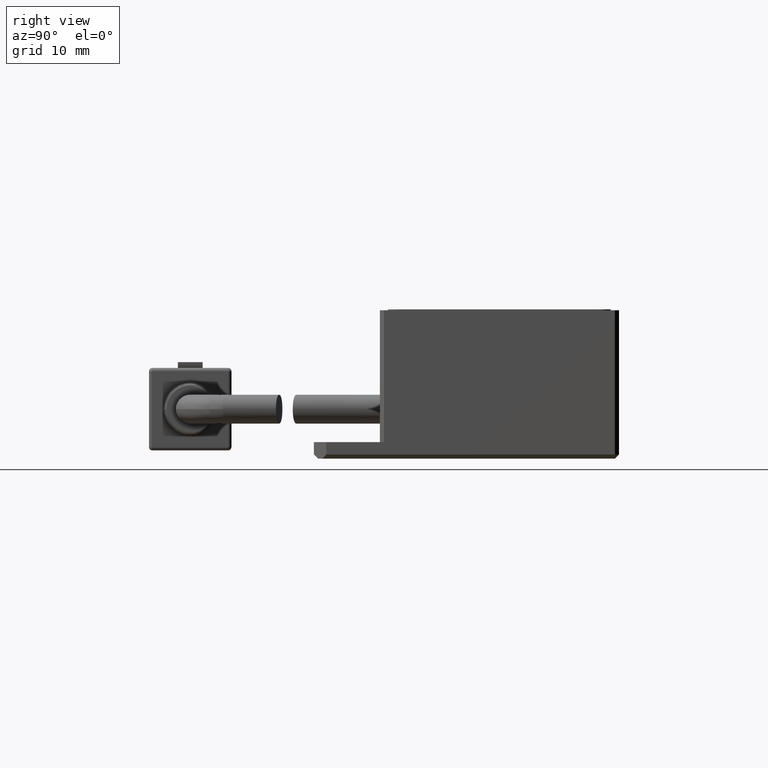
[diagram: clean part render]
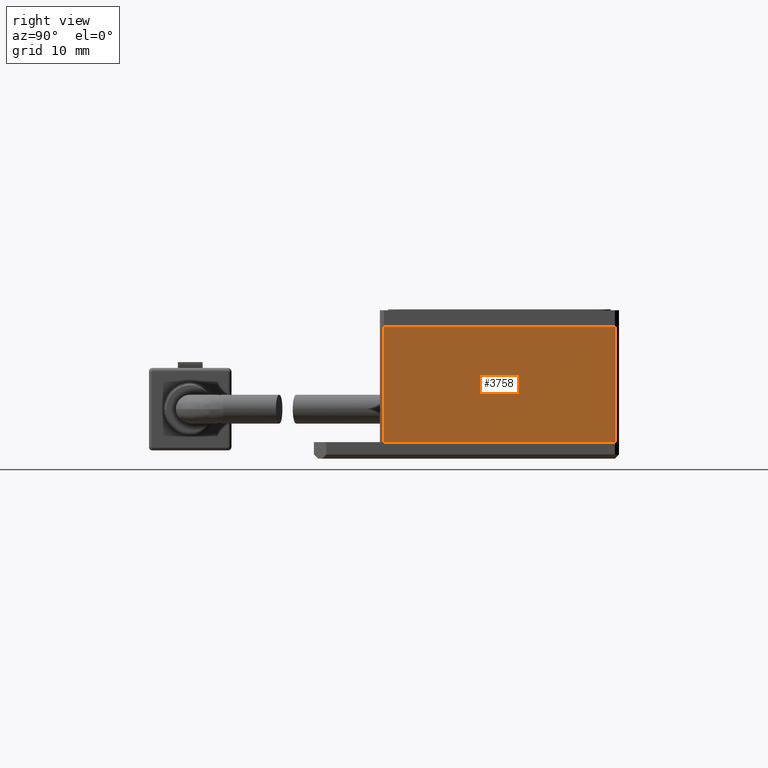
[diagram: same view with one face highlighted and labeled with its STEP entity id]
A machine part, right view. The second image highlights one B-rep face of the part: STEP entity #3758.
In plain terms, the highlighted planar face has unit normal (-1, 0, 0).
Its self-contained STEP definition (entity closure, byte-faithful):
#1616 = VERTEX_POINT ( 'NONE', #17034 ) ;
#2848 = CARTESIAN_POINT ( 'NONE',  ( 18.97059946544483500, 13.44635357006494300, 13.99999999998362900 ) ) ;
#3105 = EDGE_LOOP ( 'NONE', ( #11326, #13582, #9018, #9578 ) ) ;
#3758 = ADVANCED_FACE ( 'NONE', ( #17095 ), #11043, .F. ) ;
#3982 = LINE ( 'NONE', #6719, #8109 ) ;
#4184 = VECTOR ( 'NONE', #5984, 1000.000000000000000 ) ;
#4465 = VERTEX_POINT ( 'NONE', #10339 ) ;
#4680 = VERTEX_POINT ( 'NONE', #18642 ) ;
#5881 = VECTOR ( 'NONE', #17781, 1000.000000000000000 ) ;
#5984 = DIRECTION ( 'NONE',  ( 0.0000000000000000000, 0.0000000000000000000, 1.000000000000000000 ) ) ;
#6341 = LINE ( 'NONE', #16267, #5881 ) ;
#6527 = DIRECTION ( 'NONE',  ( -1.000000000000000000, 0.0000000000000000000, 0.0000000000000000000 ) ) ;
#6719 = CARTESIAN_POINT ( 'NONE',  ( 18.97059946544482800, -14.55364642993506400, 13.99999999998362900 ) ) ;
#7828 = EDGE_CURVE ( 'NONE', #4680, #4465, #9022, .T. ) ;
#8109 = VECTOR ( 'NONE', #9850, 1000.000000000000000 ) ;
#8798 = AXIS2_PLACEMENT_3D ( 'NONE', #15873, #6527, #17415 ) ;
#9018 = ORIENTED_EDGE ( 'NONE', *, *, #18258, .F. ) ;
#9022 = LINE ( 'NONE', #16365, #17288 ) ;
#9578 = ORIENTED_EDGE ( 'NONE', *, *, #14115, .F. ) ;
#9850 = DIRECTION ( 'NONE',  ( 0.0000000000000000000, 0.0000000000000000000, 1.000000000000000000 ) ) ;
#10339 = CARTESIAN_POINT ( 'NONE',  ( 18.97059946544482800, -14.55364642993505900, 13.99999999998362900 ) ) ;
#11043 = PLANE ( 'NONE',  #8798 ) ;
#11204 = CARTESIAN_POINT ( 'NONE',  ( 18.97059946544483500, 13.44635357006494700, -1.637492225148307100E-011 ) ) ;
#11326 = ORIENTED_EDGE ( 'NONE', *, *, #12039, .T. ) ;
#12039 = EDGE_CURVE ( 'NONE', #16986, #4680, #16604, .T. ) ;
#13217 = DIRECTION ( 'NONE',  ( -0.0000000000000000000, -1.000000000000000000, -0.0000000000000000000 ) ) ;
#13582 = ORIENTED_EDGE ( 'NONE', *, *, #7828, .T. ) ;
#14115 = EDGE_CURVE ( 'NONE', #16986, #1616, #6341, .T. ) ;
#15873 = CARTESIAN_POINT ( 'NONE',  ( 18.97059946544482800, -15.05364642993505200, 13.99999999998362900 ) ) ;
#16267 = CARTESIAN_POINT ( 'NONE',  ( 18.97059946544482800, 13.94635357006495000, -1.636971808105514000E-011 ) ) ;
#16365 = CARTESIAN_POINT ( 'NONE',  ( 18.97059946544482800, 13.94635357006495000, 13.99999999998362900 ) ) ;
#16604 = LINE ( 'NONE', #2848, #4184 ) ;
#16986 = VERTEX_POINT ( 'NONE', #11204 ) ;
#17034 = CARTESIAN_POINT ( 'NONE',  ( 18.97059946544482000, -14.55364642993506400, -1.637318752800709400E-011 ) ) ;
#17095 = FACE_OUTER_BOUND ( 'NONE', #3105, .T. ) ;
#17288 = VECTOR ( 'NONE', #13217, 1000.000000000000000 ) ;
#17415 = DIRECTION ( 'NONE',  ( 0.0000000000000000000, 0.0000000000000000000, 1.000000000000000000 ) ) ;
#17781 = DIRECTION ( 'NONE',  ( -0.0000000000000000000, -1.000000000000000000, -0.0000000000000000000 ) ) ;
#18258 = EDGE_CURVE ( 'NONE', #1616, #4465, #3982, .T. ) ;
#18642 = CARTESIAN_POINT ( 'NONE',  ( 18.97059946544483500, 13.44635357006494700, 13.99999999998362900 ) ) ;